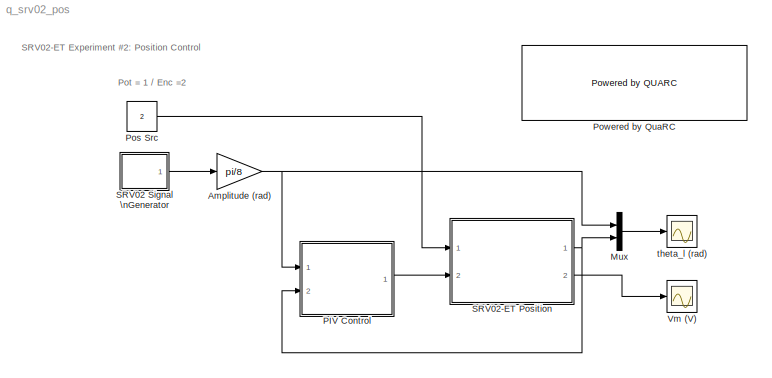
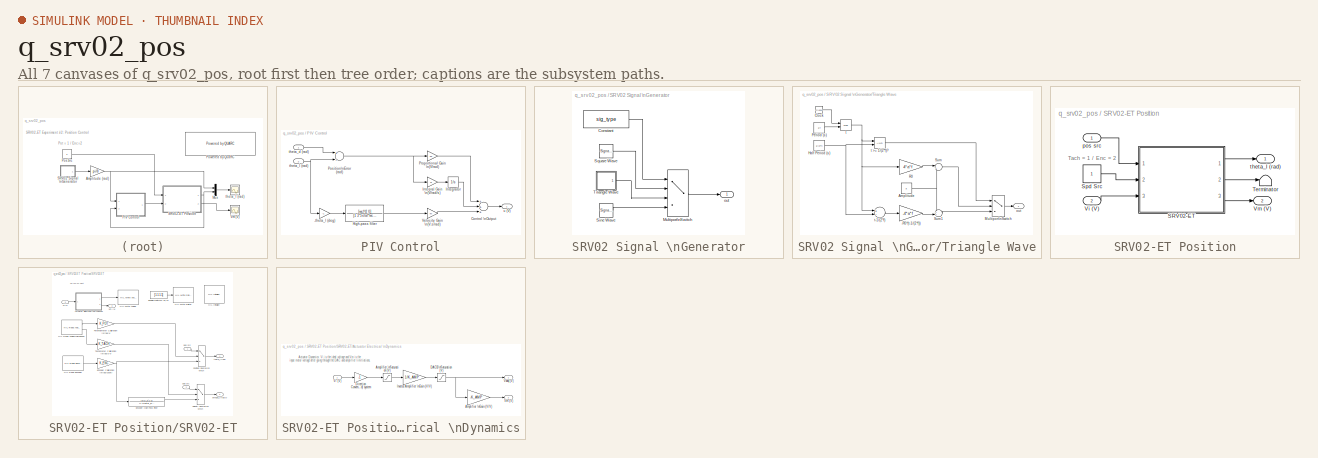
[diagram: thumbnail index - all 7 canvases of the model, root first then tree order]
MODEL q_srv02_pos
KIND model
BLOCK [Gain] Amplitude (rad)
  Gain = pi/8
BLOCK [Mux] Mux
  DisplayOption = bar
  Inputs = 2
  Ports = [2, 1]
BLOCK [SubSystem] PIV Control
  FunctionWithSeparateData = off
  MaskHideContents = off
  MinAlgLoopOccurrences = off
  Ports = [2, 1]
  RTWSystemCode = Auto
BLOCK [Gain] PIV Control/-theta_l (deg)
  Gain = -1
  OutDataTypeMode = Inherit via internal rule
  ParameterDataTypeMode = Inherit via internal rule
  SaturateOnIntegerOverflow = off
BLOCK [Sum] PIV Control/Control \nOutput
  CollapseMode = All dimensions
  InputSameDT = off
  Inputs = +++
  OutDataTypeMode = Inherit via internal rule
  OutScaling = 2^-10
  Ports = [3, 1]
  SaturateOnIntegerOverflow = off
BLOCK [TransferFcn] PIV Control/High-pass filter
  Denominator = [1 2*zetaf*wcf wcf^2]
  Numerator = [wcf^2 0]
BLOCK [Gain] PIV Control/Integral Gain \n(V//rad//s)
  Gain = ki
  OutDataTypeMode = Inherit via internal rule
  ParameterDataTypeMode = Inherit via internal rule
  SaturateOnIntegerOverflow = off
BLOCK [Integrator] PIV Control/Integrator
  IgnoreLimit = off
  LimitOutput = on
  LowerSaturationLimit = -VMAX_DAC
  Ports = [1, 1]
  UpperSaturationLimit = VMAX_DAC
BLOCK [Sum] PIV Control/Position\nError (rad)
  CollapseMode = All dimensions
  InputSameDT = off
  Inputs = +-
  OutDataTypeMode = Inherit via internal rule
  OutScaling = 2^-10
  Ports = [2, 1]
  SaturateOnIntegerOverflow = off
BLOCK [Gain] PIV Control/Proportional Gain \n(V//rad)
  Gain = kp
  OutDataTypeMode = Inherit via internal rule
  ParameterDataTypeMode = Inherit via internal rule
  SaturateOnIntegerOverflow = off
BLOCK [Gain] PIV Control/Velocity Gain \n(V.s//rad)
  Gain = kv
  OutDataTypeMode = Inherit via internal rule
  ParameterDataTypeMode = Inherit via internal rule
  SaturateOnIntegerOverflow = off
BLOCK [Inport] PIV Control/theta_d (rad)
  IconDisplay = Port number
BLOCK [Inport] PIV Control/theta_l (rad)
  IconDisplay = Port number
  Port = 2
BLOCK [Outport] PIV Control/u (V)
  BusOutputAsStruct = off
  IconDisplay = Port number
BLOCK [Constant] Pos Src
  Value = 2
BLOCK [Reference] Powered by QuaRC  REF=quarc_library/Logos/Powered by QUARC
  FunctionWithSeparateData = off
  Ports = []
  RTWMemSecDataConstants = Inherit from model
  RTWMemSecDataInternal = Inherit from model
  RTWMemSecDataParameters = Inherit from model
  RTWMemSecFuncExecute = Inherit from model
  RTWMemSecFuncInitTerm = Inherit from model
  ShowPortLabels = FromPortIcon
  SourceBlock = quarc_library/Logos/Powered by QUARC
  SourceType = Powered by QUARC
  SystemSampleTime = -1
BLOCK [SubSystem] SRV02 Signal \nGenerator
  FunctionWithSeparateData = off
  MaskCallbackString = ||
  MaskDescription = Generates a square, triangular,  or sinusoidal waveform of a specified amplitude and frequency.
  MaskDisplay = plot([0 1 1 2 2 3 4 5 6], [-1 -1 1 1 -1 -1 1 -1 -1])
  MaskEnableString = on,on,on
  MaskHelp = Choose the type of signal to be generated from the drop-down \"Signal Type\" box. Enter the amplitude and the frequency desired for the signal. Note: frequency is in Hertz.
  MaskHideContents = off
  MaskIconFrame = on
  MaskIconOpaque = on
  MaskIconRotate = none
  MaskIconUnits = autoscale
  MaskPromptString = Signal Type|Amplitude|Frequency (Hz)
  MaskStyleString = popup(square|triangle|sine),edit,edit
  MaskTabNameString = ,,
  MaskToolTipString = on,on,on
  MaskTunableValueString = on,on,on
  MaskType = QET Signal Generator
  MaskValueString = square|1|0.4
  MaskVarAliasString = ,,
  MaskVariables = sig_type=@1;a=@2;f=@3;
  MaskVisibilityString = on,on,on
  MinAlgLoopOccurrences = off
  Ports = [0, 1]
  RTWSystemCode = Auto
BLOCK [Constant] SRV02 Signal \nGenerator/Constant
  Value = sig_type
BLOCK [MultiPortSwitch] SRV02 Signal \nGenerator/Multiport\nSwitch
  InputSameDT = off
  Inputs = 3
  Ports = [4, 1]
  SaturateOnIntegerOverflow = off
BLOCK [SignalGenerator] SRV02 Signal \nGenerator/Sine Wave
  Amplitude = a
  Frequency = f
  Ports = [0, 1]
BLOCK [SignalGenerator] SRV02 Signal \nGenerator/Square Wave
  Amplitude = a
  Frequency = f
  Ports = [0, 1]
  WaveForm = square
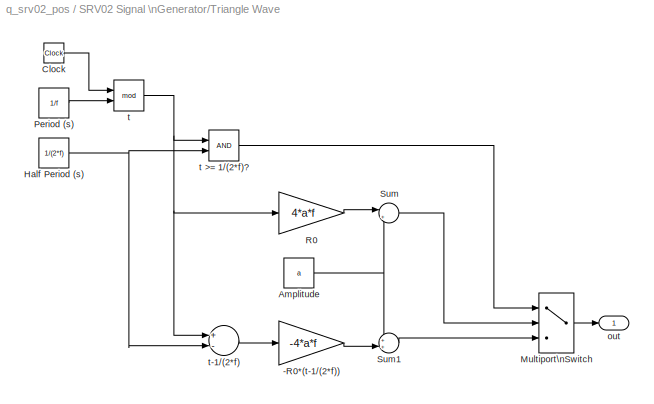
BLOCK [SubSystem] SRV02 Signal \nGenerator/Triangle Wave
  FunctionWithSeparateData = off
  MaskHideContents = off
  MinAlgLoopOccurrences = off
  Ports = [0, 1]
  RTWSystemCode = Auto
BLOCK [Gain] SRV02 Signal \nGenerator/Triangle Wave/-R0*(t-1//(2*f))
  Gain = -4*a*f
  OutDataTypeMode = Inherit via internal rule
  ParameterDataTypeMode = Inherit via internal rule
  SaturateOnIntegerOverflow = off
BLOCK [Constant] SRV02 Signal \nGenerator/Triangle Wave/Amplitude
  Value = a
BLOCK [Clock] SRV02 Signal \nGenerator/Triangle Wave/Clock
  Decimation = 10
BLOCK [Constant] SRV02 Signal \nGenerator/Triangle Wave/Half Period (s)
  Value = 1/(2*f)
BLOCK [MultiPortSwitch] SRV02 Signal \nGenerator/Triangle Wave/Multiport\nSwitch
  InputSameDT = off
  Inputs = 2
  Ports = [3, 1]
  SaturateOnIntegerOverflow = off
  zeroidx = on
BLOCK [Constant] SRV02 Signal \nGenerator/Triangle Wave/Period (s)
  Value = 1/f
BLOCK [Gain] SRV02 Signal \nGenerator/Triangle Wave/R0
  Gain = 4*a*f
  OutDataTypeMode = Inherit via internal rule
  ParameterDataTypeMode = Inherit via internal rule
  SaturateOnIntegerOverflow = off
BLOCK [Sum] SRV02 Signal \nGenerator/Triangle Wave/Sum
  CollapseMode = All dimensions
  IconShape = round
  InputSameDT = off
  Inputs = |+-
  OutDataTypeMode = Inherit via internal rule
  Ports = [2, 1]
  SaturateOnIntegerOverflow = off
BLOCK [Sum] SRV02 Signal \nGenerator/Triangle Wave/Sum1
  CollapseMode = All dimensions
  IconShape = round
  InputSameDT = off
  Inputs = ++|
  OutDataTypeMode = Inherit via internal rule
  Ports = [2, 1]
  SaturateOnIntegerOverflow = off
BLOCK [Outport] SRV02 Signal \nGenerator/Triangle Wave/out
  BusOutputAsStruct = off
  IconDisplay = Port number
BLOCK [Math] SRV02 Signal \nGenerator/Triangle Wave/t
  Operator = mod
  Ports = [2, 1]
BLOCK [RelationalOperator] SRV02 Signal \nGenerator/Triangle Wave/t >= 1//(2*f)?
  InputSameDT = off
  LogicOutDataTypeMode = Boolean
BLOCK [Sum] SRV02 Signal \nGenerator/Triangle Wave/t-1//(2*f)
  CollapseMode = All dimensions
  InputSameDT = off
  Inputs = +-
  OutDataTypeMode = Inherit via internal rule
  OutScaling = 2^-10
  Ports = [2, 1]
  SaturateOnIntegerOverflow = off
BLOCK [Outport] SRV02 Signal \nGenerator/out
  BusOutputAsStruct = off
  IconDisplay = Port number
BLOCK [SubSystem] SRV02-ET Position
  FunctionWithSeparateData = off
  MaskHideContents = off
  MinAlgLoopOccurrences = off
  Ports = [2, 2]
  RTWSystemCode = Auto
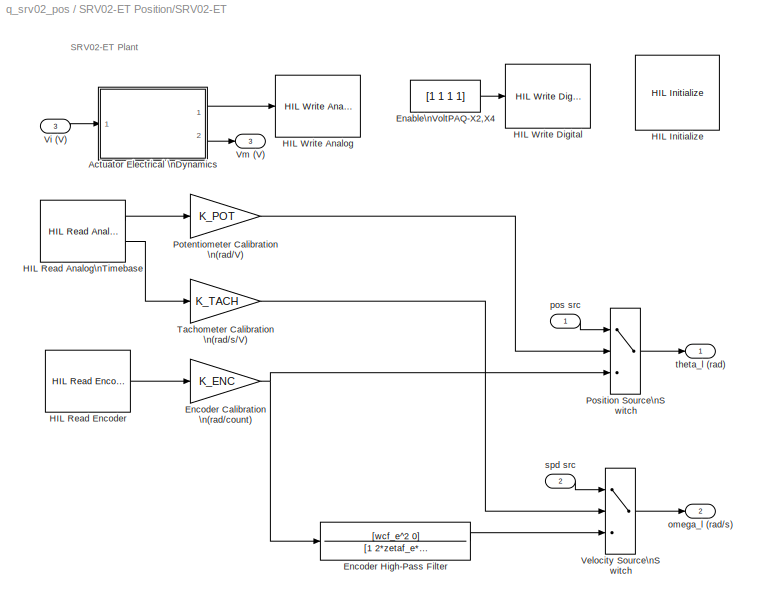
BLOCK [SubSystem] SRV02-ET Position/SRV02-ET
  FunctionWithSeparateData = off
  MaskHideContents = off
  MinAlgLoopOccurrences = off
  Ports = [3, 3]
  RTWSystemCode = Auto
BLOCK [SubSystem] SRV02-ET Position/SRV02-ET/Actuator Electrical \nDynamics
  FunctionWithSeparateData = off
  MaskHideContents = off
  MinAlgLoopOccurrences = off
  Ports = [1, 2]
  RTWSystemCode = Auto
BLOCK [Gain] SRV02-ET Position/SRV02-ET/Actuator Electrical \nDynamics/Amplifier \nGain (V//V)
  Gain = -K_AMP
  OutDataTypeMode = Inherit via internal rule
  ParameterDataTypeMode = Inherit via internal rule
  SaturateOnIntegerOverflow = off
BLOCK [Saturate] SRV02-ET Position/SRV02-ET/Actuator Electrical \nDynamics/Amplifier \nSaturation (V)
  LowerLimit = -VMAX_AMP
  UpperLimit = VMAX_AMP
BLOCK [Saturate] SRV02-ET Position/SRV02-ET/Actuator Electrical \nDynamics/DACB\nSaturation (V)
  LowerLimit = -VMAX_DAC
  UpperLimit = VMAX_DAC
BLOCK [Gain] SRV02-ET Position/SRV02-ET/Actuator Electrical \nDynamics/Direction Convention:\n(Right-Hand) system
  Gain = -1
BLOCK [Gain] SRV02-ET Position/SRV02-ET/Actuator Electrical \nDynamics/Inverse Amplifier \nGain (V//V)
  Gain = 1/K_AMP
  OutDataTypeMode = Inherit via internal rule
  ParameterDataTypeMode = Inherit via internal rule
  SaturateOnIntegerOverflow = off
BLOCK [Outport] SRV02-ET Position/SRV02-ET/Actuator Electrical \nDynamics/Vdaq (V)
  BusOutputAsStruct = off
  IconDisplay = Port number
BLOCK [Inport] SRV02-ET Position/SRV02-ET/Actuator Electrical \nDynamics/Vi (V)
  IconDisplay = Port number
BLOCK [Outport] SRV02-ET Position/SRV02-ET/Actuator Electrical \nDynamics/Vm (V)
  BusOutputAsStruct = off
  IconDisplay = Port number
  Port = 2
BLOCK [Constant] SRV02-ET Position/SRV02-ET/Enable\nVoltPAQ-X2,X4
  Value = [1 1 1 1]
BLOCK [Gain] SRV02-ET Position/SRV02-ET/Encoder Calibration \n(rad//count)
  Gain = K_ENC
BLOCK [TransferFcn] SRV02-ET Position/SRV02-ET/Encoder High-Pass Filter
  Denominator = [1 2*zetaf_e*wcf_e wcf_e^2]
  Numerator = [wcf_e^2 0]
BLOCK [Reference] SRV02-ET Position/SRV02-ET/HIL Initialize  REF=quarc_library/Data Acquisition/Generic/Configuration/HIL Initialize
  AttributesFormatString = %<object_name> (%<board_type>-%<board_number>)
  Ports = []
  SourceBlock = quarc_library/Data Acquisition/Generic/Configuration/HIL Initialize
  SourceType = HIL Initialize
  UserData = DataTag0
  UserDataPersistent = on
  active = off
  analog_input_channels = [0:7]
  analog_input_maximums = 10
  analog_input_minimums = -10
  analog_output_channels = [0:7]
  analog_output_maximums = [10]
  analog_output_minimums = [-10]
  board_number = 0
  board_type = q8
  clock_modes = [0 0]
  digital_input_channels = [16:31]
  digital_output_channels = [0:15]
  digital_output_configuration = []
  encoder_channels = [0:7]
  encoder_filter_frequency = (1/120e-9)/1
  exclusive = off
  final_analog_outputs = [0]
  final_digital_outputs = [0]
  final_other_outputs = []
  final_pwm_outputs = [0]
  hardware_clocks = [0:1]
  initial_analog_outputs = [0]
  initial_clock_frequencies = []
  initial_digital_outputs = [0]
  initial_encoder_counts = [0]
  initial_other_outputs = []
  initial_pwm_outputs = [0]
  object_name = HIL-1
  other_output_channels = []
  pwm_alignment = []
  pwm_channels = []
  pwm_configuration = []
  pwm_frequency = (1/60e-9)/1024
  pwm_leading_deadband = []
  pwm_modes = [0]
  pwm_polarity = []
  pwm_trailing_deadband = []
  quadrature = [4]
  set_analog_input_params_at_start = off
  set_analog_input_params_at_switch_in = off
  set_analog_output_params_at_start = on
  set_analog_output_params_at_switch_in = off
  set_analog_outputs_at_start = on
  set_analog_outputs_at_switch_in = off
  set_analog_outputs_at_switch_out = off
  set_analog_outputs_at_terminate = on
  set_analog_outputs_on_watchdog = on
  set_clock_frequencies_at_start = off
  set_clock_frequencies_at_switch_in = off
  set_clock_params_at_start = on
  set_clock_params_at_switch_in = off
  set_digital_output_params_at_start = off
  set_digital_output_params_at_switch_in = off
  set_digital_outputs_at_start = on
  set_digital_outputs_at_switch_in = off
  set_digital_outputs_at_switch_out = off
  set_digital_outputs_at_terminate = on
  set_digital_outputs_on_watchdog = off
  set_encoder_counts_at_start = on
  set_encoder_counts_at_switch_in = off
  set_encoder_params_at_start = on
  set_encoder_params_at_switch_in = off
  set_other_outputs_at_start = off
  set_other_outputs_at_switch_in = off
  set_other_outputs_at_switch_out = off
  set_other_outputs_at_terminate = off
  set_other_outputs_on_watchdog = off
  set_pwm_outputs_at_start = on
  set_pwm_outputs_at_switch_in = off
  set_pwm_outputs_at_switch_out = off
  set_pwm_outputs_at_terminate = on
  set_pwm_outputs_on_watchdog = off
  set_pwm_params_at_start = on
  set_pwm_params_at_switch_in = off
  watchdog_analog_outputs = 0
  watchdog_digital_outputs = [2]
  watchdog_other_outputs = []
  watchdog_pwm_outputs = []
BLOCK [Reference] SRV02-ET Position/SRV02-ET/HIL Read Analog\nTimebase  REF=quarc_library/Data Acquisition/Generic/Timebases/HIL Read Analog\nTimebase
  AttributesFormatString = (%<object_name>)
  Ports = [0, 2]
  SourceBlock = quarc_library/Data Acquisition/Generic/Timebases/HIL Read Analog\nTimebase
  SourceType = HIL Read Analog Timebase
  Tag = unassigned
  UserData = DataTag1
  UserDataPersistent = on
  active = on
  channels = [0:1]
  clock = 0
  object_name = HIL-1
  samples_in_buffer = max(ceil(1/qc_get_step_size), 1)
  vector_output = off
BLOCK [Reference] SRV02-ET Position/SRV02-ET/HIL Read Encoder  REF=quarc_library/Data Acquisition/Generic/Immediate I//O/HIL Read Encoder
  AttributesFormatString = (%<object_name>)
  Ports = [0, 1]
  SourceBlock = quarc_library/Data Acquisition/Generic/Immediate I//O/HIL Read Encoder
  SourceType = HIL Read Encoder
  Tag = unassigned
  UserData = DataTag2
  UserDataPersistent = on
  active = on
  channels = 0
  data_type = double
  data_type_mode = Inherit via back propagation
  object_name = HIL-1
  sample_time = qc_get_step_size
  vector_output = off
BLOCK [Reference] SRV02-ET Position/SRV02-ET/HIL Write Analog  REF=quarc_library/Data Acquisition/Generic/Immediate I//O/HIL Write Analog
  AttributesFormatString = (%<object_name>)
  Ports = [1]
  SourceBlock = quarc_library/Data Acquisition/Generic/Immediate I//O/HIL Write Analog
  SourceType = HIL Write Analog
  Tag = unassigned
  UserData = DataTag3
  UserDataPersistent = on
  active = off
  channels = 0
  object_name = HIL-1
  sample_time = -1
  vector_input = off
BLOCK [Reference] SRV02-ET Position/SRV02-ET/HIL Write Digital  REF=quarc_library/Data Acquisition/Generic/Immediate I//O/HIL Write Digital
  AttributesFormatString = (%<object_name>)
  Ports = [1]
  SourceBlock = quarc_library/Data Acquisition/Generic/Immediate I//O/HIL Write Digital
  SourceType = HIL Write Digital
  UserData = DataTag4
  UserDataPersistent = on
  active = off
  channels = [0:3]
  object_name = HIL-1
  sample_time = -1
  vector_input = on
BLOCK [MultiPortSwitch] SRV02-ET Position/SRV02-ET/Position Source\nSwitch
  InputSameDT = off
  Inputs = 2
  Ports = [3, 1]
  SaturateOnIntegerOverflow = off
BLOCK [Gain] SRV02-ET Position/SRV02-ET/Potentiometer Calibration \n(rad//V)
  Gain = K_POT
BLOCK [Gain] SRV02-ET Position/SRV02-ET/Tachometer Calibration \n(rad//s//V)
  Gain = K_TACH
BLOCK [MultiPortSwitch] SRV02-ET Position/SRV02-ET/Velocity Source\nSwitch
  InputSameDT = off
  Inputs = 2
  Ports = [3, 1]
  SaturateOnIntegerOverflow = off
BLOCK [Inport] SRV02-ET Position/SRV02-ET/Vi (V)
  IconDisplay = Port number
  Port = 3
BLOCK [Outport] SRV02-ET Position/SRV02-ET/Vm (V)
  BusOutputAsStruct = off
  IconDisplay = Port number
  InitialOutput = 0
  Port = 3
BLOCK [Outport] SRV02-ET Position/SRV02-ET/omega_l (rad//s)
  BusOutputAsStruct = off
  IconDisplay = Port number
  InitialOutput = 0
  Port = 2
BLOCK [Inport] SRV02-ET Position/SRV02-ET/pos src
  IconDisplay = Port number
BLOCK [Inport] SRV02-ET Position/SRV02-ET/spd src
  IconDisplay = Port number
  Port = 2
BLOCK [Outport] SRV02-ET Position/SRV02-ET/theta_l (rad)
  BusOutputAsStruct = off
  IconDisplay = Port number
  InitialOutput = 0
BLOCK [Constant] SRV02-ET Position/Spd Src
BLOCK [Terminator] SRV02-ET Position/Terminator
BLOCK [Inport] SRV02-ET Position/Vi (V)
  IconDisplay = Port number
  Port = 2
BLOCK [Outport] SRV02-ET Position/Vm (V)
  BusOutputAsStruct = off
  IconDisplay = Port number
  Port = 2
BLOCK [Inport] SRV02-ET Position/pos src
  IconDisplay = Port number
BLOCK [Outport] SRV02-ET Position/theta_l (rad)
  BusOutputAsStruct = off
  IconDisplay = Port number
BLOCK [Scope] Vm (V)
  DataFormat = Array
  Floating = off
  NumInputPorts = 1
  Ports = [1]
  SampleTime = 0
  SaveName = data_vm
  SaveToWorkspace = on
  TimeRange = 5
  YMax = 10
  YMin = -10
BLOCK [Scope] theta_l (rad)
  DataFormat = Array
  Floating = off
  NumInputPorts = 1
  Ports = [1]
  SampleTime = 0
  SaveName = data_pos
  SaveToWorkspace = on
  TimeRange = 5
  YMax = 1
  YMin = -1
ANNOTATION (root): Pot = 1 / Enc =2
ANNOTATION (root): SRV02-ET Experiment #2: Position Control
ANNOTATION SRV02-ET Position: Tach = 1 / Enc = 2
ANNOTATION SRV02-ET Position/SRV02-ET: SRV02-ET Plant
ANNOTATION SRV02-ET Position/SRV02-ET/Actuator Electrical \nDynamics: Actuator Dynamics: Vi is the ideal voltage and Vm is the \ninput motor voltage after going through the DAC and amplifier limitiations.
NET Amplitude (rad):1 -> Mux:1, PIV Control:1
LINE Mux:1 -> theta_l (rad):1
LINE PIV Control/-theta_l (deg):1 -> PIV Control/High-pass filter:1
LINE PIV Control/Control \nOutput:1 -> PIV Control/u (V):1
LINE PIV Control/High-pass filter:1 -> PIV Control/Velocity Gain \n(V.s//rad):1
LINE PIV Control/Integral Gain \n(V//rad//s):1 -> PIV Control/Integrator:1
LINE PIV Control/Integrator:1 -> PIV Control/Control \nOutput:2
NET PIV Control/Position\nError (rad):1 -> PIV Control/Integral Gain \n(V//rad//s):1, PIV Control/Proportional Gain \n(V//rad):1
LINE PIV Control/Proportional Gain \n(V//rad):1 -> PIV Control/Control \nOutput:1
LINE PIV Control/Velocity Gain \n(V.s//rad):1 -> PIV Control/Control \nOutput:3
LINE PIV Control/theta_d (rad):1 -> PIV Control/Position\nError (rad):1
NET PIV Control/theta_l (rad):1 -> PIV Control/-theta_l (deg):1, PIV Control/Position\nError (rad):2
LINE PIV Control:1 -> SRV02-ET Position:2
LINE Pos Src:1 -> SRV02-ET Position:1
LINE SRV02 Signal \nGenerator/Constant:1 -> SRV02 Signal \nGenerator/Multiport\nSwitch:1
LINE SRV02 Signal \nGenerator/Multiport\nSwitch:1 -> SRV02 Signal \nGenerator/out:1
LINE SRV02 Signal \nGenerator/Sine Wave:1 -> SRV02 Signal \nGenerator/Multiport\nSwitch:4
LINE SRV02 Signal \nGenerator/Square Wave:1 -> SRV02 Signal \nGenerator/Multiport\nSwitch:2
LINE SRV02 Signal \nGenerator/Triangle Wave/-R0*(t-1//(2*f)):1 -> SRV02 Signal \nGenerator/Triangle Wave/Sum1:2
NET SRV02 Signal \nGenerator/Triangle Wave/Amplitude:1 -> SRV02 Signal \nGenerator/Triangle Wave/Sum1:1, SRV02 Signal \nGenerator/Triangle Wave/Sum:2
LINE SRV02 Signal \nGenerator/Triangle Wave/Clock:1 -> SRV02 Signal \nGenerator/Triangle Wave/t:1
NET SRV02 Signal \nGenerator/Triangle Wave/Half Period (s):1 -> SRV02 Signal \nGenerator/Triangle Wave/t >= 1//(2*f)?:2, SRV02 Signal \nGenerator/Triangle Wave/t-1//(2*f):2
LINE SRV02 Signal \nGenerator/Triangle Wave/Multiport\nSwitch:1 -> SRV02 Signal \nGenerator/Triangle Wave/out:1
LINE SRV02 Signal \nGenerator/Triangle Wave/Period (s):1 -> SRV02 Signal \nGenerator/Triangle Wave/t:2
LINE SRV02 Signal \nGenerator/Triangle Wave/R0:1 -> SRV02 Signal \nGenerator/Triangle Wave/Sum:1
LINE SRV02 Signal \nGenerator/Triangle Wave/Sum1:1 -> SRV02 Signal \nGenerator/Triangle Wave/Multiport\nSwitch:3
LINE SRV02 Signal \nGenerator/Triangle Wave/Sum:1 -> SRV02 Signal \nGenerator/Triangle Wave/Multiport\nSwitch:2
LINE SRV02 Signal \nGenerator/Triangle Wave/t >= 1//(2*f)?:1 -> SRV02 Signal \nGenerator/Triangle Wave/Multiport\nSwitch:1
LINE SRV02 Signal \nGenerator/Triangle Wave/t-1//(2*f):1 -> SRV02 Signal \nGenerator/Triangle Wave/-R0*(t-1//(2*f)):1
NET SRV02 Signal \nGenerator/Triangle Wave/t:1 -> SRV02 Signal \nGenerator/Triangle Wave/R0:1, SRV02 Signal \nGenerator/Triangle Wave/t >= 1//(2*f)?:1, SRV02 Signal \nGenerator/Triangle Wave/t-1//(2*f):1
LINE SRV02 Signal \nGenerator/Triangle Wave:1 -> SRV02 Signal \nGenerator/Multiport\nSwitch:3
LINE SRV02 Signal \nGenerator:1 -> Amplitude (rad):1
LINE SRV02-ET Position/SRV02-ET/Actuator Electrical \nDynamics/Amplifier \nGain (V//V):1 -> SRV02-ET Position/SRV02-ET/Actuator Electrical \nDynamics/Vm (V):1
LINE SRV02-ET Position/SRV02-ET/Actuator Electrical \nDynamics/Amplifier \nSaturation (V):1 -> SRV02-ET Position/SRV02-ET/Actuator Electrical \nDynamics/Inverse Amplifier \nGain (V//V):1
NET SRV02-ET Position/SRV02-ET/Actuator Electrical \nDynamics/DACB\nSaturation (V):1 -> SRV02-ET Position/SRV02-ET/Actuator Electrical \nDynamics/Amplifier \nGain (V//V):1, SRV02-ET Position/SRV02-ET/Actuator Electrical \nDynamics/Vdaq (V):1
LINE SRV02-ET Position/SRV02-ET/Actuator Electrical \nDynamics/Direction Convention:\n(Right-Hand) system:1 -> SRV02-ET Position/SRV02-ET/Actuator Electrical \nDynamics/Amplifier \nSaturation (V):1
LINE SRV02-ET Position/SRV02-ET/Actuator Electrical \nDynamics/Inverse Amplifier \nGain (V//V):1 -> SRV02-ET Position/SRV02-ET/Actuator Electrical \nDynamics/DACB\nSaturation (V):1
LINE SRV02-ET Position/SRV02-ET/Actuator Electrical \nDynamics/Vi (V):1 -> SRV02-ET Position/SRV02-ET/Actuator Electrical \nDynamics/Direction Convention:\n(Right-Hand) system:1
LINE SRV02-ET Position/SRV02-ET/Actuator Electrical \nDynamics:1 -> SRV02-ET Position/SRV02-ET/HIL Write Analog:1
LINE SRV02-ET Position/SRV02-ET/Actuator Electrical \nDynamics:2 -> SRV02-ET Position/SRV02-ET/Vm (V):1
LINE SRV02-ET Position/SRV02-ET/Enable\nVoltPAQ-X2,X4:1 -> SRV02-ET Position/SRV02-ET/HIL Write Digital:1
NET SRV02-ET Position/SRV02-ET/Encoder Calibration \n(rad//count):1 -> SRV02-ET Position/SRV02-ET/Encoder High-Pass Filter:1, SRV02-ET Position/SRV02-ET/Position Source\nSwitch:3
LINE SRV02-ET Position/SRV02-ET/Encoder High-Pass Filter:1 -> SRV02-ET Position/SRV02-ET/Velocity Source\nSwitch:3
LINE SRV02-ET Position/SRV02-ET/HIL Read Analog\nTimebase:1 -> SRV02-ET Position/SRV02-ET/Potentiometer Calibration \n(rad//V):1
LINE SRV02-ET Position/SRV02-ET/HIL Read Analog\nTimebase:2 -> SRV02-ET Position/SRV02-ET/Tachometer Calibration \n(rad//s//V):1
LINE SRV02-ET Position/SRV02-ET/HIL Read Encoder:1 -> SRV02-ET Position/SRV02-ET/Encoder Calibration \n(rad//count):1
LINE SRV02-ET Position/SRV02-ET/Position Source\nSwitch:1 -> SRV02-ET Position/SRV02-ET/theta_l (rad):1
LINE SRV02-ET Position/SRV02-ET/Potentiometer Calibration \n(rad//V):1 -> SRV02-ET Position/SRV02-ET/Position Source\nSwitch:2
LINE SRV02-ET Position/SRV02-ET/Tachometer Calibration \n(rad//s//V):1 -> SRV02-ET Position/SRV02-ET/Velocity Source\nSwitch:2
LINE SRV02-ET Position/SRV02-ET/Velocity Source\nSwitch:1 -> SRV02-ET Position/SRV02-ET/omega_l (rad//s):1
LINE SRV02-ET Position/SRV02-ET/Vi (V):1 -> SRV02-ET Position/SRV02-ET/Actuator Electrical \nDynamics:1
LINE SRV02-ET Position/SRV02-ET/pos src:1 -> SRV02-ET Position/SRV02-ET/Position Source\nSwitch:1
LINE SRV02-ET Position/SRV02-ET/spd src:1 -> SRV02-ET Position/SRV02-ET/Velocity Source\nSwitch:1
LINE SRV02-ET Position/SRV02-ET:1 -> SRV02-ET Position/theta_l (rad):1
LINE SRV02-ET Position/SRV02-ET:2 -> SRV02-ET Position/Terminator:1
LINE SRV02-ET Position/SRV02-ET:3 -> SRV02-ET Position/Vm (V):1
LINE SRV02-ET Position/Spd Src:1 -> SRV02-ET Position/SRV02-ET:2
LINE SRV02-ET Position/Vi (V):1 -> SRV02-ET Position/SRV02-ET:3
LINE SRV02-ET Position/pos src:1 -> SRV02-ET Position/SRV02-ET:1
NET SRV02-ET Position:1 -> Mux:2, PIV Control:2
LINE SRV02-ET Position:2 -> Vm (V):1
note: NET lines group one-source signal fan-out (src -> all destinations, sorted); 1:1 wires keep LINE
